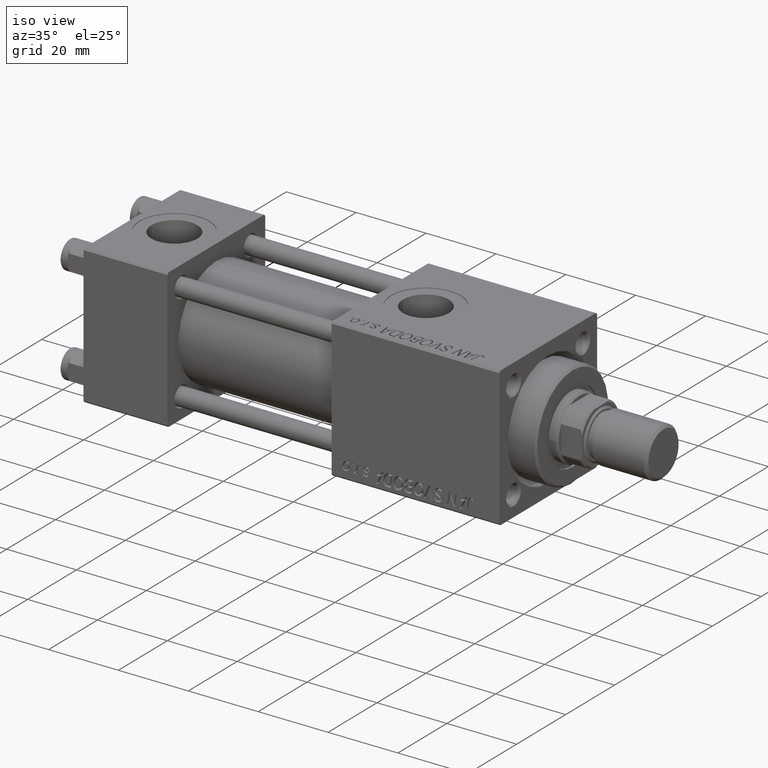
[diagram: clean part render]
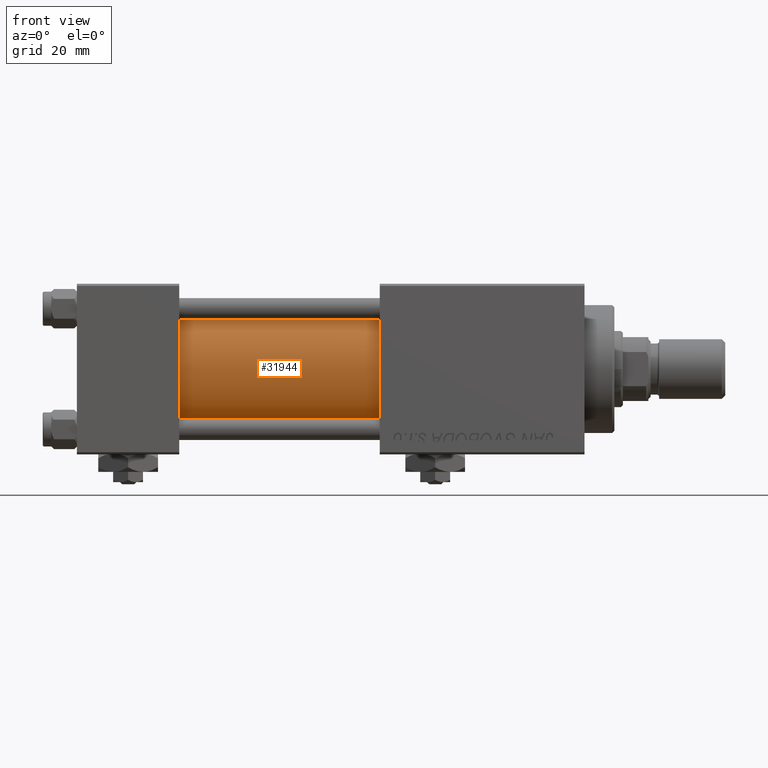
[diagram: tour spotlight — one face highlighted and labeled with its STEP entity id]
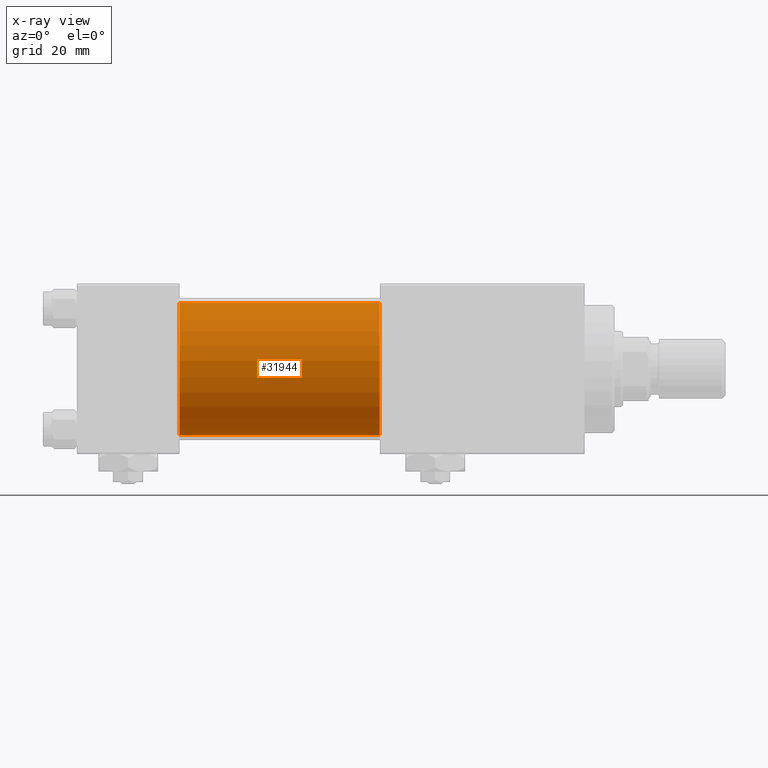
[diagram: x-ray of the same camera — body ghosted, this tour face saturated]
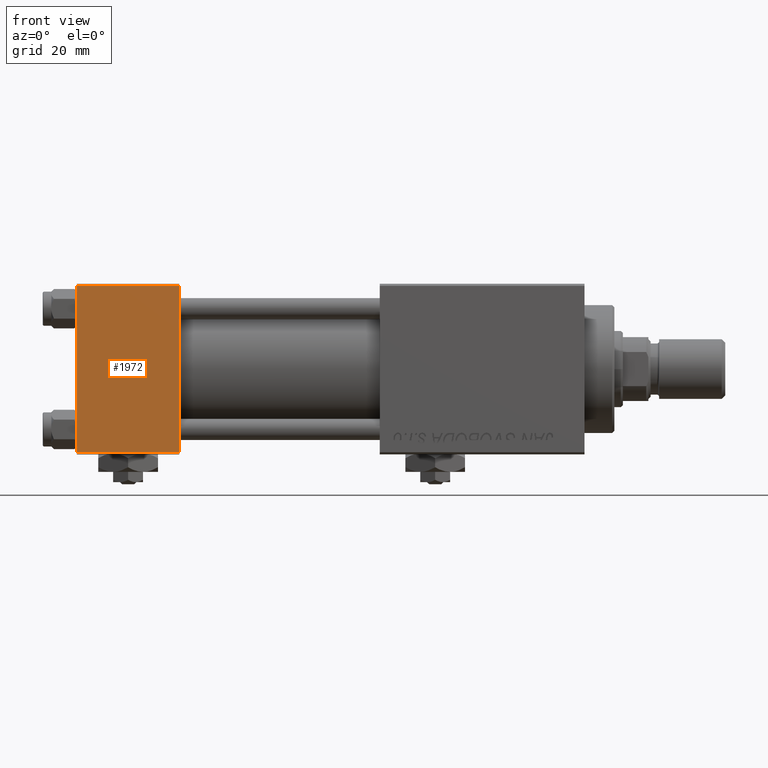
[diagram: tour spotlight — one face highlighted and labeled with its STEP entity id]
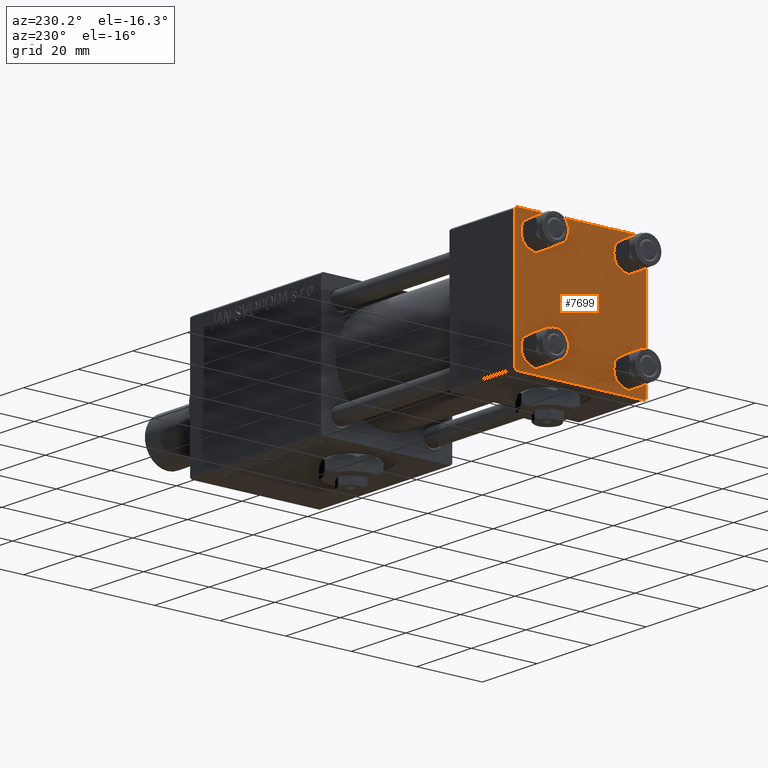
[diagram: tour spotlight — one face highlighted and labeled with its STEP entity id]
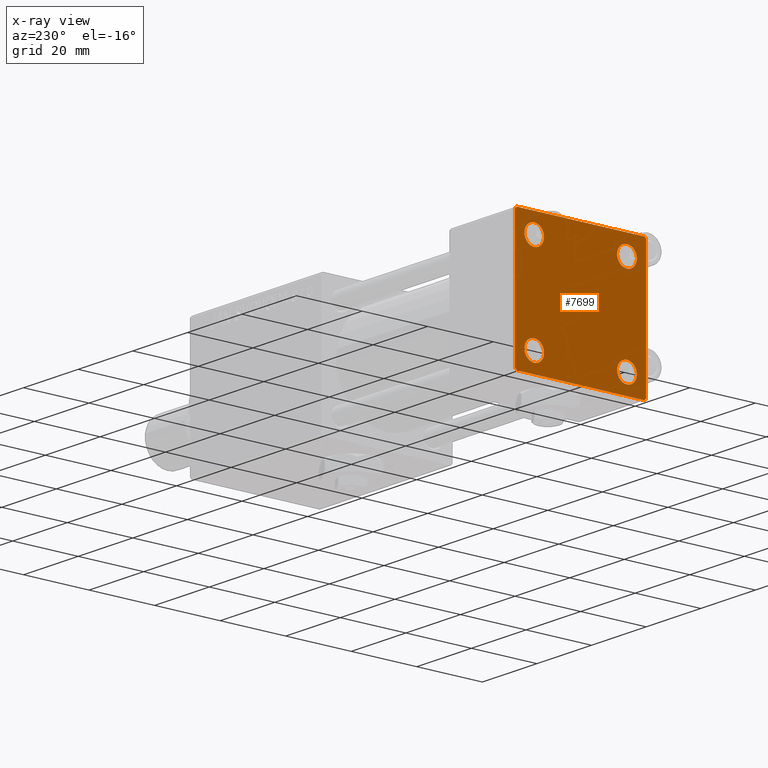
[diagram: x-ray of the same camera — body ghosted, this tour face saturated]
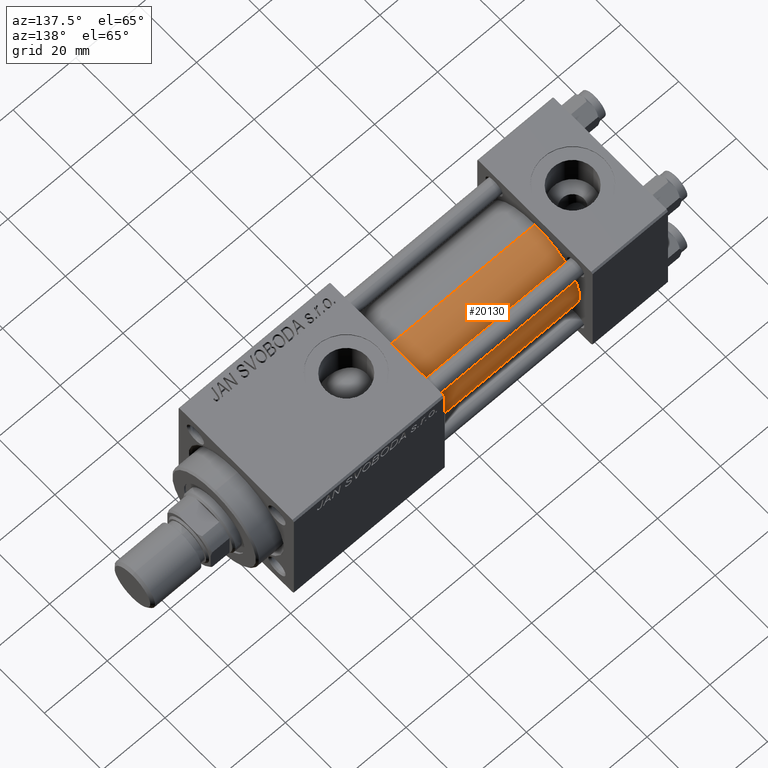
[diagram: tour spotlight — one face highlighted and labeled with its STEP entity id]
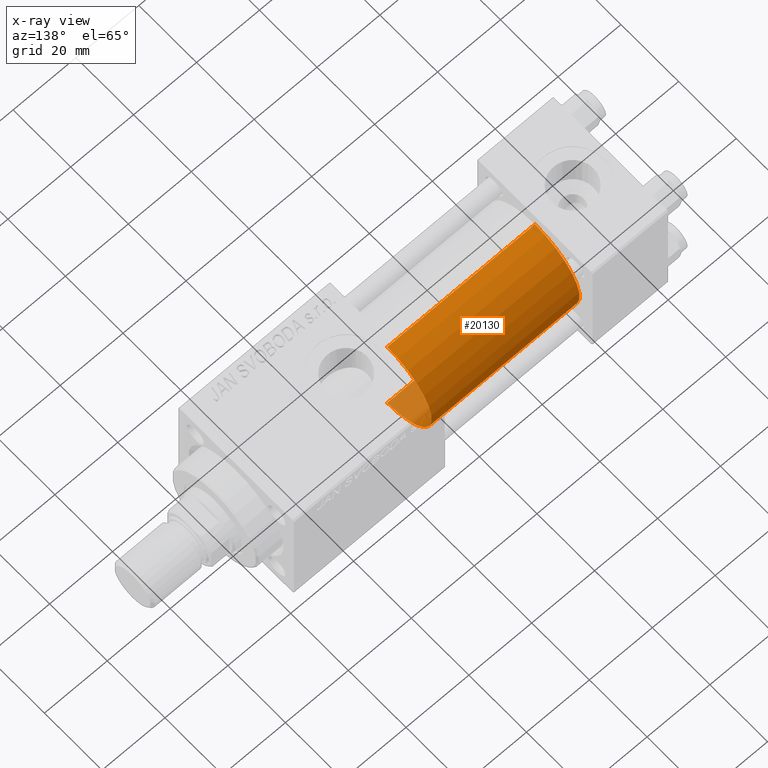
[diagram: x-ray of the same camera — body ghosted, this tour face saturated]
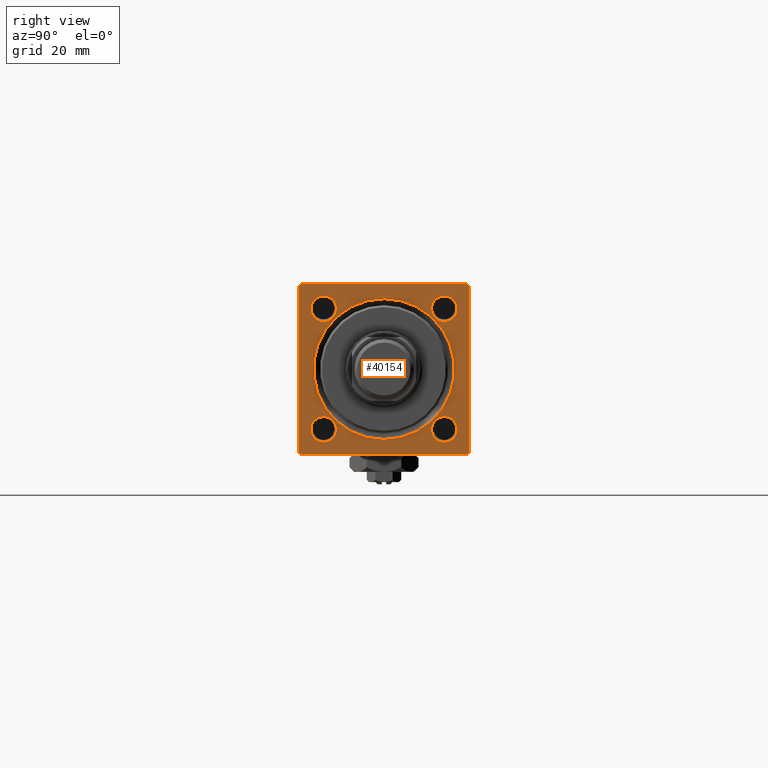
[diagram: tour spotlight — one face highlighted and labeled with its STEP entity id]
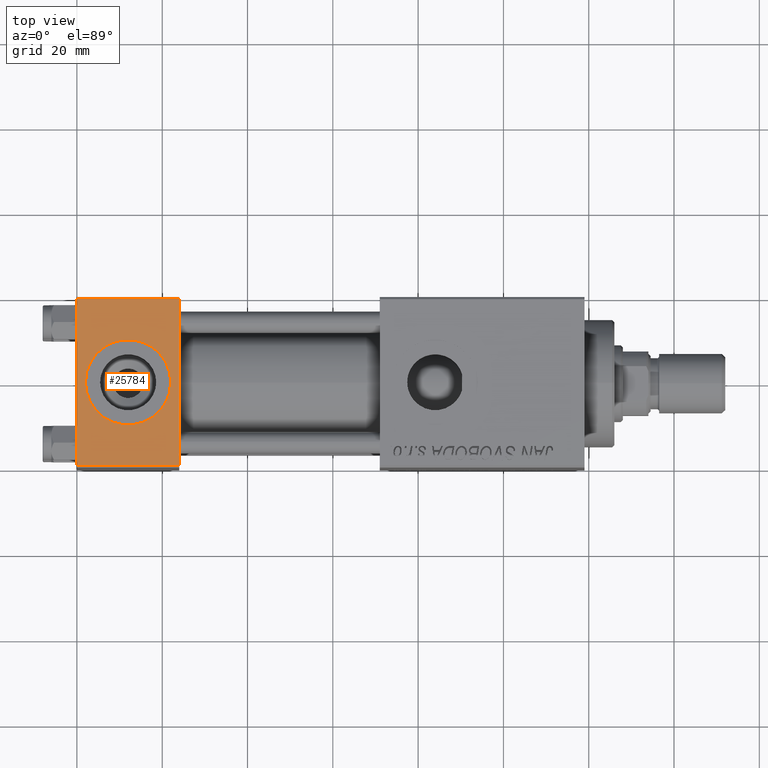
[diagram: tour spotlight — one face highlighted and labeled with its STEP entity id]
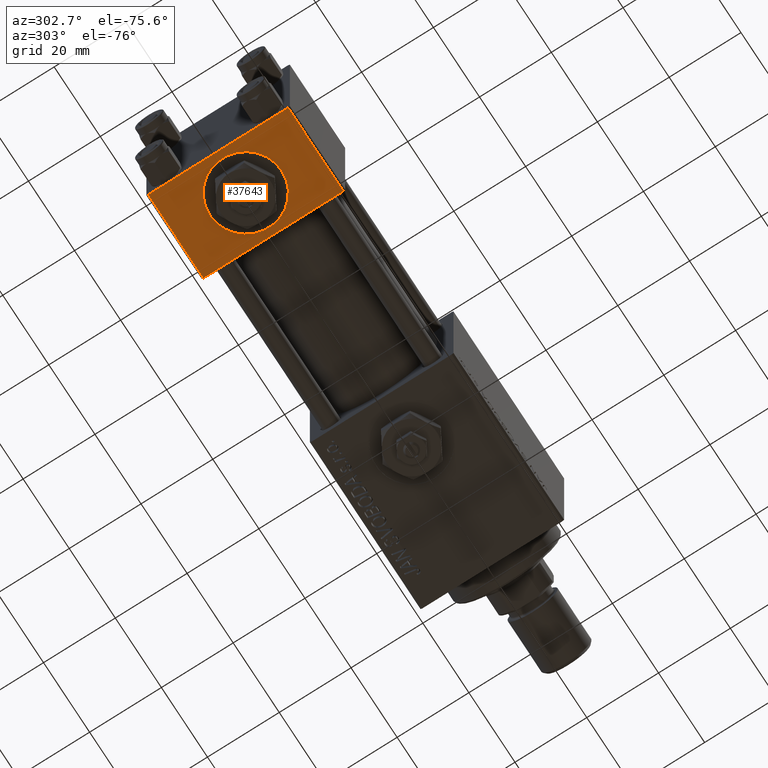
[diagram: tour spotlight — one face highlighted and labeled with its STEP entity id]
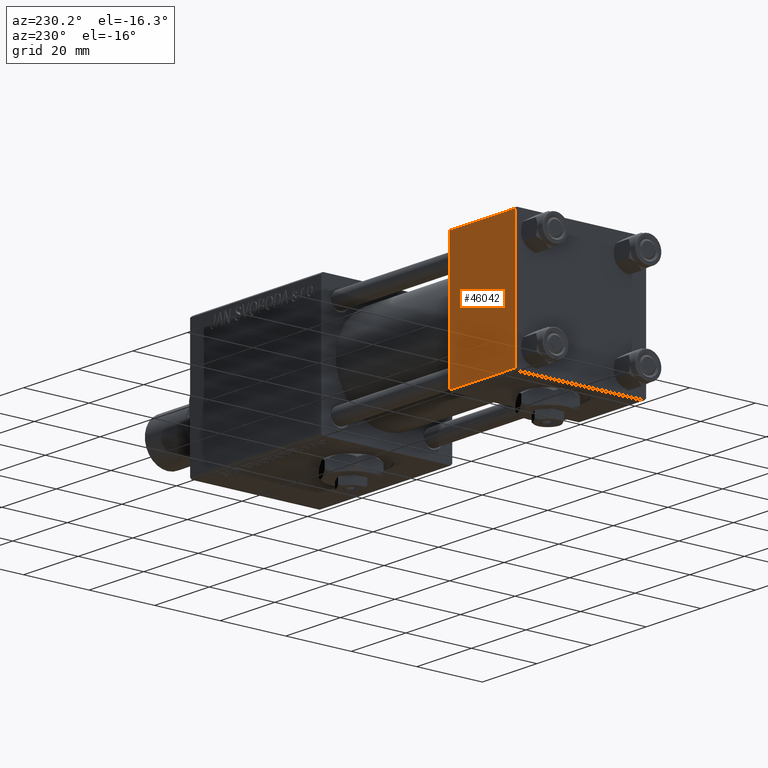
[diagram: tour spotlight — one face highlighted and labeled with its STEP entity id]
A machine part: a face-by-face anatomy tour. The part has 1259 B-rep faces; the first image is the clean iso view, then the 8 largest visible faces are spotlighted one at a time (largest first), each with its STEP entity span.

Face 1 — front view, entity #31944. An x-ray twin of the same camera follows (body ghosted, this face saturated) — the face is partly hidden behind the body. In plain terms, the highlighted cylindrical surface (partial cylindrical patch) has radius 15.5 mm, axis along (-1, -0, -0).
Definition (entity closure, byte-faithful):
#772 = DIRECTION ( 'NONE',  ( 1.000000000000000000, 0.000000000000000000, 0.000000000000000000 ) ) ;
#1445 = CIRCLE ( 'NONE', #26029, 15.50000000000000000 ) ;
#3919 = VERTEX_POINT ( 'NONE', #25788 ) ;
#4306 = AXIS2_PLACEMENT_3D ( 'NONE', #6470, #26680, #22682 ) ;
#4509 = VERTEX_POINT ( 'NONE', #25077 ) ;
#5015 = CARTESIAN_POINT ( 'NONE',  ( 24.00000000000000000, -2.602085213965210642E-15, 0.000000000000000000 ) ) ;
#6470 = CARTESIAN_POINT ( 'NONE',  ( 71.00000000000001421, -2.602085213965210642E-15, 0.000000000000000000 ) ) ;
#6595 = EDGE_CURVE ( 'NONE', #4509, #49563, #1445, .T. ) ;
#8224 = DIRECTION ( 'NONE',  ( 0.000000000000000000, 0.000000000000000000, 1.000000000000000000 ) ) ;
#8422 = CARTESIAN_POINT ( 'NONE',  ( 71.00000000000001421, -2.602085213965210642E-15, 15.50000000000000000 ) ) ;
#9399 = ORIENTED_EDGE ( 'NONE', *, *, #6595, .T. ) ;
#10640 = ORIENTED_EDGE ( 'NONE', *, *, #43083, .F. ) ;
#12834 = DIRECTION ( 'NONE',  ( -1.000000000000000000, -0.000000000000000000, -0.000000000000000000 ) ) ;
#12959 = EDGE_LOOP ( 'NONE', ( #39228, #10640, #49989, #9399 ) ) ;
#17626 = AXIS2_PLACEMENT_3D ( 'NONE', #49300, #21112, #41570 ) ;
#17658 = FACE_OUTER_BOUND ( 'NONE', #12959, .T. ) ;
#21112 = DIRECTION ( 'NONE',  ( -1.000000000000000000, -0.000000000000000000, -0.000000000000000000 ) ) ;
#22682 = DIRECTION ( 'NONE',  ( 0.000000000000000000, 0.000000000000000000, -1.000000000000000000 ) ) ;
#25077 = CARTESIAN_POINT ( 'NONE',  ( 24.00000000000000000, -2.602085213965210642E-15, 15.50000000000000000 ) ) ;
#25788 = CARTESIAN_POINT ( 'NONE',  ( 71.00000000000001421, -7.038826752868131828E-16, -15.50000000000000000 ) ) ;
#26029 = AXIS2_PLACEMENT_3D ( 'NONE', #5015, #772, #8224 ) ;
#26680 = DIRECTION ( 'NONE',  ( 1.000000000000000000, 0.000000000000000000, 0.000000000000000000 ) ) ;
#28715 = LINE ( 'NONE', #28982, #45893 ) ;
#28982 = CARTESIAN_POINT ( 'NONE',  ( 71.00000000000001421, -7.038826752868131828E-16, -15.50000000000000000 ) ) ;
#31944 = ADVANCED_FACE ( 'NONE', ( #17658 ), #33851, .T. ) ;
#32395 = EDGE_CURVE ( 'NONE', #35226, #4509, #33013, .T. ) ;
#33013 = LINE ( 'NONE', #49236, #43090 ) ;
#33749 = DIRECTION ( 'NONE',  ( -1.000000000000000000, -0.000000000000000000, -0.000000000000000000 ) ) ;
#33851 = CYLINDRICAL_SURFACE ( 'NONE', #17626, 15.50000000000000000 ) ;
#35226 = VERTEX_POINT ( 'NONE', #8422 ) ;
#39228 = ORIENTED_EDGE ( 'NONE', *, *, #39497, .F. ) ;
#39497 = EDGE_CURVE ( 'NONE', #3919, #49563, #28715, .T. ) ;
#41570 = DIRECTION ( 'NONE',  ( 0.000000000000000000, 0.000000000000000000, 1.000000000000000000 ) ) ;
#41631 = CIRCLE ( 'NONE', #4306, 15.50000000000000000 ) ;
#43083 = EDGE_CURVE ( 'NONE', #35226, #3919, #41631, .T. ) ;
#43090 = VECTOR ( 'NONE', #12834, 1000.000000000000000 ) ;
#45583 = CARTESIAN_POINT ( 'NONE',  ( 24.00000000000000000, -7.038826752868131828E-16, -15.50000000000000000 ) ) ;
#45893 = VECTOR ( 'NONE', #33749, 1000.000000000000000 ) ;
#49236 = CARTESIAN_POINT ( 'NONE',  ( 71.00000000000001421, -2.602085213965210642E-15, 15.50000000000000000 ) ) ;
#49300 = CARTESIAN_POINT ( 'NONE',  ( 71.00000000000001421, -2.602085213965210642E-15, 0.000000000000000000 ) ) ;
#49563 = VERTEX_POINT ( 'NONE', #45583 ) ;
#49989 = ORIENTED_EDGE ( 'NONE', *, *, #32395, .T. ) ;

Face 2 — front view, entity #1972. In plain terms, the highlighted planar face has unit normal (0, 1, 0).
Definition (entity closure, byte-faithful):
#1972 = ADVANCED_FACE ( 'NONE', ( #14635 ), #23384, .F. ) ;
#2105 = DIRECTION ( 'NONE',  ( 1.000000000000000000, 0.000000000000000000, 0.000000000000000000 ) ) ;
#3200 = DIRECTION ( 'NONE',  ( -0.000000000000000000, 1.000000000000000000, 8.673617379884036705E-17 ) ) ;
#3279 = CARTESIAN_POINT ( 'NONE',  ( 24.00000000000000000, -20.00000000000000355, 19.49999999999998224 ) ) ;
#3604 = VECTOR ( 'NONE', #2105, 1000.000000000000000 ) ;
#5746 = VERTEX_POINT ( 'NONE', #7902 ) ;
#7902 = CARTESIAN_POINT ( 'NONE',  ( 24.00000000000000000, -20.00000000000000000, -19.49999999999999645 ) ) ;
#10791 = CARTESIAN_POINT ( 'NONE',  ( 0.000000000000000000, -20.00000000000000355, 19.49999999999998224 ) ) ;
#12721 = VERTEX_POINT ( 'NONE', #30601 ) ;
#14556 = VECTOR ( 'NONE', #25156, 1000.000000000000000 ) ;
#14635 = FACE_OUTER_BOUND ( 'NONE', #47112, .T. ) ;
#14720 = ORIENTED_EDGE ( 'NONE', *, *, #48013, .T. ) ;
#18190 = EDGE_CURVE ( 'NONE', #41983, #43911, #24218, .T. ) ;
#18439 = VECTOR ( 'NONE', #35711, 1000.000000000000000 ) ;
#19420 = DIRECTION ( 'NONE',  ( 0.000000000000000000, -8.673617379884036705E-17, 1.000000000000000000 ) ) ;
#19646 = CARTESIAN_POINT ( 'NONE',  ( 0.000000000000000000, -20.00000000000000000, -19.49999999999999645 ) ) ;
#22216 = CARTESIAN_POINT ( 'NONE',  ( 24.00000000000000000, -20.00000000000000355, 19.99999999999998934 ) ) ;
#22298 = CARTESIAN_POINT ( 'NONE',  ( 24.00000000000000000, -20.00000000000000000, -19.49999999999999645 ) ) ;
#23216 = ORIENTED_EDGE ( 'NONE', *, *, #41785, .F. ) ;
#23384 = PLANE ( 'NONE',  #41286 ) ;
#23650 = CARTESIAN_POINT ( 'NONE',  ( 24.00000000000000000, -20.00000000000000355, 19.99999999999998934 ) ) ;
#24218 = LINE ( 'NONE', #49198, #30578 ) ;
#25156 = DIRECTION ( 'NONE',  ( 0.000000000000000000, 8.673617379884036705E-17, -1.000000000000000000 ) ) ;
#27462 = ORIENTED_EDGE ( 'NONE', *, *, #18190, .T. ) ;
#27977 = EDGE_CURVE ( 'NONE', #12721, #41983, #31712, .T. ) ;
#30578 = VECTOR ( 'NONE', #40430, 1000.000000000000000 ) ;
#30601 = CARTESIAN_POINT ( 'NONE',  ( 24.00000000000000000, -20.00000000000000355, 19.49999999999998224 ) ) ;
#30998 = ORIENTED_EDGE ( 'NONE', *, *, #27977, .T. ) ;
#31712 = LINE ( 'NONE', #3279, #18439 ) ;
#34255 = LINE ( 'NONE', #22298, #3604 ) ;
#35711 = DIRECTION ( 'NONE',  ( -1.000000000000000000, 0.000000000000000000, 0.000000000000000000 ) ) ;
#40430 = DIRECTION ( 'NONE',  ( 0.000000000000000000, 8.673617379884036705E-17, -1.000000000000000000 ) ) ;
#41286 = AXIS2_PLACEMENT_3D ( 'NONE', #23650, #3200, #19420 ) ;
#41785 = EDGE_CURVE ( 'NONE', #12721, #5746, #46410, .T. ) ;
#41983 = VERTEX_POINT ( 'NONE', #10791 ) ;
#43911 = VERTEX_POINT ( 'NONE', #19646 ) ;
#46410 = LINE ( 'NONE', #22216, #14556 ) ;
#47112 = EDGE_LOOP ( 'NONE', ( #27462, #14720, #23216, #30998 ) ) ;
#48013 = EDGE_CURVE ( 'NONE', #43911, #5746, #34255, .T. ) ;
#49198 = CARTESIAN_POINT ( 'NONE',  ( 0.000000000000000000, -20.00000000000000355, 19.99999999999998934 ) ) ;

Face 3 — auxiliary view, entity #7699. An x-ray twin of the same camera follows (body ghosted, this face saturated) — the face is partly hidden behind the body. In plain terms, the highlighted planar face has unit normal (-1, 0, 0).
Definition (entity closure, byte-faithful):
#1100 = EDGE_CURVE ( 'NONE', #22124, #18497, #41246, .T. ) ;
#1232 = VERTEX_POINT ( 'NONE', #15407 ) ;
#1260 = DIRECTION ( 'NONE',  ( 1.000000000000000000, 0.000000000000000000, 0.000000000000000000 ) ) ;
#1580 = VECTOR ( 'NONE', #7051, 1000.000000000000000 ) ;
#3014 = ORIENTED_EDGE ( 'NONE', *, *, #45493, .T. ) ;
#3990 = VECTOR ( 'NONE', #13583, 1000.000000000000000 ) ;
#4117 = VERTEX_POINT ( 'NONE', #50641 ) ;
#5299 = VECTOR ( 'NONE', #29547, 1000.000000000000000 ) ;
#5502 = DIRECTION ( 'NONE',  ( 0.000000000000000000, 0.000000000000000000, 1.000000000000000000 ) ) ;
#6158 = LINE ( 'NONE', #10149, #5299 ) ;
#6210 = CARTESIAN_POINT ( 'NONE',  ( 0.000000000000000000, -19.49999999999999289, 19.99999999999998934 ) ) ;
#6273 = FACE_OUTER_BOUND ( 'NONE', #8627, .T. ) ;
#6357 = EDGE_CURVE ( 'NONE', #33269, #4117, #41752, .T. ) ;
#6745 = CIRCLE ( 'NONE', #30464, 2.999999999999983569 ) ;
#6774 = CARTESIAN_POINT ( 'NONE',  ( 0.000000000000000000, -19.75000000000020961, -19.74999999999979394 ) ) ;
#7051 = DIRECTION ( 'NONE',  ( 0.000000000000000000, -0.7071067811865401342, 0.7071067811865549002 ) ) ;
#7329 = DIRECTION ( 'NONE',  ( 1.000000000000000000, 0.000000000000000000, 0.000000000000000000 ) ) ;
#7518 = LINE ( 'NONE', #31958, #15452 ) ;
#7699 = ADVANCED_FACE ( 'NONE', ( #33650, #10271, #29928, #46154, #6273 ), #21686, .T. ) ;
#8082 = CARTESIAN_POINT ( 'NONE',  ( 0.000000000000000000, -14.14999999999999503, 14.15000000000000391 ) ) ;
#8627 = EDGE_LOOP ( 'NONE', ( #41526, #45180, #49940, #15626, #50252, #29240, #10117, #9997 ) ) ;
#9122 = DIRECTION ( 'NONE',  ( 0.000000000000000000, 0.000000000000000000, 1.000000000000000000 ) ) ;
#9404 = ORIENTED_EDGE ( 'NONE', *, *, #36912, .T. ) ;
#9427 = CARTESIAN_POINT ( 'NONE',  ( 0.000000000000000000, -14.14999999999999503, -11.15000000000000036 ) ) ;
#9471 = AXIS2_PLACEMENT_3D ( 'NONE', #39488, #46678, #38959 ) ;
#9740 = CARTESIAN_POINT ( 'NONE',  ( 0.000000000000000000, 0.000000000000000000, 0.000000000000000000 ) ) ;
#9997 = ORIENTED_EDGE ( 'NONE', *, *, #16512, .T. ) ;
#10099 = DIRECTION ( 'NONE',  ( 1.000000000000000000, 0.000000000000000000, 0.000000000000000000 ) ) ;
#10117 = ORIENTED_EDGE ( 'NONE', *, *, #21887, .F. ) ;
#10149 = CARTESIAN_POINT ( 'NONE',  ( 0.000000000000000000, 20.00000000000000000, -20.00000000000000711 ) ) ;
#10271 = FACE_BOUND ( 'NONE', #22908, .T. ) ;
#10791 = CARTESIAN_POINT ( 'NONE',  ( 0.000000000000000000, -20.00000000000000355, 19.49999999999998224 ) ) ;
#11555 = DIRECTION ( 'NONE',  ( 0.000000000000000000, 0.000000000000000000, 1.000000000000000000 ) ) ;
#12022 = VECTOR ( 'NONE', #36033, 1000.000000000000114 ) ;
#12197 = AXIS2_PLACEMENT_3D ( 'NONE', #28774, #47962, #11555 ) ;
#12774 = EDGE_LOOP ( 'NONE', ( #28235, #36507 ) ) ;
#12778 = CARTESIAN_POINT ( 'NONE',  ( 0.000000000000000000, 14.14999999999999858, 14.15000000000000036 ) ) ;
#13583 = DIRECTION ( 'NONE',  ( 0.000000000000000000, 0.000000000000000000, -1.000000000000000000 ) ) ;
#13928 = AXIS2_PLACEMENT_3D ( 'NONE', #34203, #1260, #5502 ) ;
#14205 = CARTESIAN_POINT ( 'NONE',  ( 0.000000000000000000, 19.50000000000000000, 20.00000000000000000 ) ) ;
#15062 = EDGE_CURVE ( 'NONE', #4117, #26042, #52029, .T. ) ;
#15407 = CARTESIAN_POINT ( 'NONE',  ( 0.000000000000000000, -14.14999999999999503, 11.15000000000002345 ) ) ;
#15452 = VECTOR ( 'NONE', #23727, 1000.000000000000000 ) ;
#15626 = ORIENTED_EDGE ( 'NONE', *, *, #34580, .T. ) ;
#16266 = AXIS2_PLACEMENT_3D ( 'NONE', #47743, #7329, #42940 ) ;
#16498 = DIRECTION ( 'NONE',  ( 1.000000000000000000, 0.000000000000000000, 0.000000000000000000 ) ) ;
#16512 = EDGE_CURVE ( 'NONE', #51121, #33269, #17910, .T. ) ;
#17322 = CIRCLE ( 'NONE', #13928, 3.000000000000004441 ) ;
#17570 = CARTESIAN_POINT ( 'NONE',  ( 0.000000000000000000, 20.00000000000000000, 20.00000000000000000 ) ) ;
#17720 = DIRECTION ( 'NONE',  ( -1.000000000000000000, 0.000000000000000000, -0.000000000000000000 ) ) ;
#17724 = CARTESIAN_POINT ( 'NONE',  ( 0.000000000000000000, -14.14999999999999503, 17.14999999999998792 ) ) ;
#17884 = VERTEX_POINT ( 'NONE', #40765 ) ;
#17910 = LINE ( 'NONE', #29587, #18767 ) ;
#18190 = EDGE_CURVE ( 'NONE', #41983, #43911, #24218, .T. ) ;
#18285 = ORIENTED_EDGE ( 'NONE', *, *, #49993, .T. ) ;
#18497 = VERTEX_POINT ( 'NONE', #19562 ) ;
#18541 = CARTESIAN_POINT ( 'NONE',  ( -0.000000000000000000, 19.74999999999986855, -19.75000000000014211 ) ) ;
#18747 = LINE ( 'NONE', #6774, #1580 ) ;
#18758 = EDGE_LOOP ( 'NONE', ( #9404, #3014 ) ) ;
#18767 = VECTOR ( 'NONE', #26138, 999.9999999999998863 ) ;
#19322 = DIRECTION ( 'NONE',  ( 0.000000000000000000, 0.000000000000000000, 1.000000000000000000 ) ) ;
#19356 = CIRCLE ( 'NONE', #23586, 2.999999999999983569 ) ;
#19562 = CARTESIAN_POINT ( 'NONE',  ( 0.000000000000000000, 14.14999999999999858, 17.14999999999998437 ) ) ;
#19646 = CARTESIAN_POINT ( 'NONE',  ( 0.000000000000000000, -20.00000000000000000, -19.49999999999999645 ) ) ;
#20094 = CARTESIAN_POINT ( 'NONE',  ( 0.000000000000000000, -14.14999999999999503, 14.15000000000000391 ) ) ;
#21279 = ORIENTED_EDGE ( 'NONE', *, *, #41883, .T. ) ;
#21349 = ORIENTED_EDGE ( 'NONE', *, *, #51519, .T. ) ;
#21686 = PLANE ( 'NONE',  #25236 ) ;
#21887 = EDGE_CURVE ( 'NONE', #51121, #24240, #7518, .T. ) ;
#22124 = VERTEX_POINT ( 'NONE', #51432 ) ;
#22908 = EDGE_LOOP ( 'NONE', ( #18285, #21349 ) ) ;
#23586 = AXIS2_PLACEMENT_3D ( 'NONE', #12778, #16498, #44668 ) ;
#23727 = DIRECTION ( 'NONE',  ( 0.000000000000000000, -1.000000000000000000, -2.602085213965210149E-16 ) ) ;
#24218 = LINE ( 'NONE', #49198, #30578 ) ;
#24240 = VERTEX_POINT ( 'NONE', #6210 ) ;
#24756 = CIRCLE ( 'NONE', #9471, 2.999999999999983569 ) ;
#24836 = CARTESIAN_POINT ( 'NONE',  ( -0.000000000000000000, -19.74999999999992539, 19.75000000000006395 ) ) ;
#25062 = EDGE_CURVE ( 'NONE', #26042, #17884, #6158, .T. ) ;
#25236 = AXIS2_PLACEMENT_3D ( 'NONE', #9740, #17720, #29662 ) ;
#26042 = VERTEX_POINT ( 'NONE', #31918 ) ;
#26138 = DIRECTION ( 'NONE',  ( 0.000000000000000000, 0.7071067811865425767, -0.7071067811865525687 ) ) ;
#26660 = VERTEX_POINT ( 'NONE', #32068 ) ;
#28235 = ORIENTED_EDGE ( 'NONE', *, *, #33658, .T. ) ;
#28319 = CARTESIAN_POINT ( 'NONE',  ( 0.000000000000000000, -14.14999999999999503, -17.15000000000000924 ) ) ;
#28774 = CARTESIAN_POINT ( 'NONE',  ( 0.000000000000000000, -14.14999999999999503, -14.15000000000000391 ) ) ;
#29240 = ORIENTED_EDGE ( 'NONE', *, *, #42103, .T. ) ;
#29547 = DIRECTION ( 'NONE',  ( 0.000000000000000000, -1.000000000000000000, 1.734723475976807094E-16 ) ) ;
#29587 = CARTESIAN_POINT ( 'NONE',  ( -0.000000000000000000, 19.75000000000013500, 19.74999999999986144 ) ) ;
#29662 = DIRECTION ( 'NONE',  ( -0.000000000000000000, 0.000000000000000000, 1.000000000000000000 ) ) ;
#29928 = FACE_BOUND ( 'NONE', #34532, .T. ) ;
#30006 = CIRCLE ( 'NONE', #12197, 3.000000000000004441 ) ;
#30464 = AXIS2_PLACEMENT_3D ( 'NONE', #8082, #32520, #9122 ) ;
#30578 = VECTOR ( 'NONE', #40430, 1000.000000000000000 ) ;
#30667 = CIRCLE ( 'NONE', #16266, 2.999999999999983569 ) ;
#31012 = DIRECTION ( 'NONE',  ( -0.000000000000000000, -0.7071067811865524577, -0.7071067811865426878 ) ) ;
#31547 = CARTESIAN_POINT ( 'NONE',  ( 0.000000000000000000, 20.00000000000000000, 19.49999999999999289 ) ) ;
#31554 = CIRCLE ( 'NONE', #49342, 2.999999999999983569 ) ;
#31918 = CARTESIAN_POINT ( 'NONE',  ( 0.000000000000000000, 19.50000000000000711, -20.00000000000000711 ) ) ;
#31958 = CARTESIAN_POINT ( 'NONE',  ( 0.000000000000000000, 20.00000000000000000, 20.00000000000000000 ) ) ;
#32068 = CARTESIAN_POINT ( 'NONE',  ( 0.000000000000000000, 14.14999999999999858, -17.14999999999998437 ) ) ;
#32520 = DIRECTION ( 'NONE',  ( 1.000000000000000000, 0.000000000000000000, 0.000000000000000000 ) ) ;
#33213 = VERTEX_POINT ( 'NONE', #46706 ) ;
#33269 = VERTEX_POINT ( 'NONE', #31547 ) ;
#33650 = FACE_BOUND ( 'NONE', #18758, .T. ) ;
#33658 = EDGE_CURVE ( 'NONE', #18497, #22124, #19356, .T. ) ;
#34015 = DIRECTION ( 'NONE',  ( 0.000000000000000000, 0.000000000000000000, 1.000000000000000000 ) ) ;
#34203 = CARTESIAN_POINT ( 'NONE',  ( 0.000000000000000000, -14.14999999999999503, -14.15000000000000391 ) ) ;
#34532 = EDGE_LOOP ( 'NONE', ( #21279, #40429 ) ) ;
#34580 = EDGE_CURVE ( 'NONE', #17884, #43911, #18747, .T. ) ;
#36033 = DIRECTION ( 'NONE',  ( -0.000000000000000000, 0.7071067811865500152, 0.7071067811865451302 ) ) ;
#36507 = ORIENTED_EDGE ( 'NONE', *, *, #1100, .T. ) ;
#36804 = LINE ( 'NONE', #24836, #12022 ) ;
#36912 = EDGE_CURVE ( 'NONE', #47360, #1232, #6745, .T. ) ;
#38959 = DIRECTION ( 'NONE',  ( 0.000000000000000000, 0.000000000000000000, 1.000000000000000000 ) ) ;
#39488 = CARTESIAN_POINT ( 'NONE',  ( 0.000000000000000000, 14.14999999999999858, -14.15000000000000036 ) ) ;
#40429 = ORIENTED_EDGE ( 'NONE', *, *, #41954, .T. ) ;
#40430 = DIRECTION ( 'NONE',  ( 0.000000000000000000, 8.673617379884036705E-17, -1.000000000000000000 ) ) ;
#40765 = CARTESIAN_POINT ( 'NONE',  ( 0.000000000000000000, -19.50000000000000711, -20.00000000000000000 ) ) ;
#41246 = CIRCLE ( 'NONE', #44664, 2.999999999999983569 ) ;
#41526 = ORIENTED_EDGE ( 'NONE', *, *, #6357, .T. ) ;
#41752 = LINE ( 'NONE', #17570, #3990 ) ;
#41883 = EDGE_CURVE ( 'NONE', #33213, #26660, #30667, .T. ) ;
#41954 = EDGE_CURVE ( 'NONE', #26660, #33213, #24756, .T. ) ;
#41983 = VERTEX_POINT ( 'NONE', #10791 ) ;
#42103 = EDGE_CURVE ( 'NONE', #41983, #24240, #36804, .T. ) ;
#42940 = DIRECTION ( 'NONE',  ( 0.000000000000000000, 0.000000000000000000, 1.000000000000000000 ) ) ;
#43911 = VERTEX_POINT ( 'NONE', #19646 ) ;
#44370 = VERTEX_POINT ( 'NONE', #9427 ) ;
#44664 = AXIS2_PLACEMENT_3D ( 'NONE', #46787, #10099, #34015 ) ;
#44668 = DIRECTION ( 'NONE',  ( 0.000000000000000000, 0.000000000000000000, 1.000000000000000000 ) ) ;
#45180 = ORIENTED_EDGE ( 'NONE', *, *, #15062, .T. ) ;
#45493 = EDGE_CURVE ( 'NONE', #1232, #47360, #31554, .T. ) ;
#46154 = FACE_BOUND ( 'NONE', #12774, .T. ) ;
#46678 = DIRECTION ( 'NONE',  ( 1.000000000000000000, 0.000000000000000000, 0.000000000000000000 ) ) ;
#46706 = CARTESIAN_POINT ( 'NONE',  ( 0.000000000000000000, 14.14999999999999858, -11.15000000000001812 ) ) ;
#46787 = CARTESIAN_POINT ( 'NONE',  ( 0.000000000000000000, 14.14999999999999858, 14.15000000000000036 ) ) ;
#47360 = VERTEX_POINT ( 'NONE', #17724 ) ;
#47743 = CARTESIAN_POINT ( 'NONE',  ( 0.000000000000000000, 14.14999999999999858, -14.15000000000000036 ) ) ;
#47962 = DIRECTION ( 'NONE',  ( 1.000000000000000000, 0.000000000000000000, 0.000000000000000000 ) ) ;
#48425 = VECTOR ( 'NONE', #31012, 1000.000000000000000 ) ;
#49198 = CARTESIAN_POINT ( 'NONE',  ( 0.000000000000000000, -20.00000000000000355, 19.99999999999998934 ) ) ;
#49342 = AXIS2_PLACEMENT_3D ( 'NONE', #20094, #52257, #19322 ) ;
#49940 = ORIENTED_EDGE ( 'NONE', *, *, #25062, .T. ) ;
#49993 = EDGE_CURVE ( 'NONE', #44370, #50727, #30006, .T. ) ;
#50252 = ORIENTED_EDGE ( 'NONE', *, *, #18190, .F. ) ;
#50641 = CARTESIAN_POINT ( 'NONE',  ( 0.000000000000000000, 20.00000000000000000, -19.50000000000002132 ) ) ;
#50727 = VERTEX_POINT ( 'NONE', #28319 ) ;
#51121 = VERTEX_POINT ( 'NONE', #14205 ) ;
#51432 = CARTESIAN_POINT ( 'NONE',  ( 0.000000000000000000, 14.14999999999999858, 11.15000000000001990 ) ) ;
#51519 = EDGE_CURVE ( 'NONE', #50727, #44370, #17322, .T. ) ;
#52029 = LINE ( 'NONE', #18541, #48425 ) ;
#52257 = DIRECTION ( 'NONE',  ( 1.000000000000000000, 0.000000000000000000, 0.000000000000000000 ) ) ;

Face 4 — auxiliary view, entity #20130. An x-ray twin of the same camera follows (body ghosted, this face saturated) — the face is partly hidden behind the body. In plain terms, the highlighted cylindrical surface (partial cylindrical patch) has radius 15.5 mm, axis along (-1, -0, -0).
Definition (entity closure, byte-faithful):
#2498 = AXIS2_PLACEMENT_3D ( 'NONE', #28522, #44751, #4609 ) ;
#3919 = VERTEX_POINT ( 'NONE', #25788 ) ;
#4509 = VERTEX_POINT ( 'NONE', #25077 ) ;
#4609 = DIRECTION ( 'NONE',  ( 0.000000000000000000, 0.000000000000000000, -1.000000000000000000 ) ) ;
#6114 = ORIENTED_EDGE ( 'NONE', *, *, #36966, .F. ) ;
#8422 = CARTESIAN_POINT ( 'NONE',  ( 71.00000000000001421, -2.602085213965210642E-15, 15.50000000000000000 ) ) ;
#11620 = DIRECTION ( 'NONE',  ( 1.000000000000000000, 0.000000000000000000, 0.000000000000000000 ) ) ;
#11879 = CARTESIAN_POINT ( 'NONE',  ( 24.00000000000000000, -2.602085213965210642E-15, 0.000000000000000000 ) ) ;
#12834 = DIRECTION ( 'NONE',  ( -1.000000000000000000, -0.000000000000000000, -0.000000000000000000 ) ) ;
#16509 = CARTESIAN_POINT ( 'NONE',  ( 71.00000000000001421, -2.602085213965210642E-15, 0.000000000000000000 ) ) ;
#16769 = FACE_OUTER_BOUND ( 'NONE', #34836, .T. ) ;
#17497 = ORIENTED_EDGE ( 'NONE', *, *, #33369, .T. ) ;
#19854 = DIRECTION ( 'NONE',  ( 0.000000000000000000, 0.000000000000000000, 1.000000000000000000 ) ) ;
#20130 = ADVANCED_FACE ( 'NONE', ( #16769 ), #32963, .T. ) ;
#22743 = CIRCLE ( 'NONE', #33778, 15.50000000000000000 ) ;
#23029 = AXIS2_PLACEMENT_3D ( 'NONE', #16509, #41204, #29496 ) ;
#25077 = CARTESIAN_POINT ( 'NONE',  ( 24.00000000000000000, -2.602085213965210642E-15, 15.50000000000000000 ) ) ;
#25788 = CARTESIAN_POINT ( 'NONE',  ( 71.00000000000001421, -7.038826752868131828E-16, -15.50000000000000000 ) ) ;
#27111 = CIRCLE ( 'NONE', #2498, 15.50000000000000000 ) ;
#28522 = CARTESIAN_POINT ( 'NONE',  ( 71.00000000000001421, -2.602085213965210642E-15, 0.000000000000000000 ) ) ;
#28715 = LINE ( 'NONE', #28982, #45893 ) ;
#28982 = CARTESIAN_POINT ( 'NONE',  ( 71.00000000000001421, -7.038826752868131828E-16, -15.50000000000000000 ) ) ;
#29496 = DIRECTION ( 'NONE',  ( 0.000000000000000000, 0.000000000000000000, 1.000000000000000000 ) ) ;
#32395 = EDGE_CURVE ( 'NONE', #35226, #4509, #33013, .T. ) ;
#32963 = CYLINDRICAL_SURFACE ( 'NONE', #23029, 15.50000000000000000 ) ;
#33013 = LINE ( 'NONE', #49236, #43090 ) ;
#33369 = EDGE_CURVE ( 'NONE', #49563, #4509, #22743, .T. ) ;
#33749 = DIRECTION ( 'NONE',  ( -1.000000000000000000, -0.000000000000000000, -0.000000000000000000 ) ) ;
#33778 = AXIS2_PLACEMENT_3D ( 'NONE', #11879, #11620, #19854 ) ;
#34836 = EDGE_LOOP ( 'NONE', ( #6114, #44892, #17497, #49444 ) ) ;
#35226 = VERTEX_POINT ( 'NONE', #8422 ) ;
#36966 = EDGE_CURVE ( 'NONE', #3919, #35226, #27111, .T. ) ;
#39497 = EDGE_CURVE ( 'NONE', #3919, #49563, #28715, .T. ) ;
#41204 = DIRECTION ( 'NONE',  ( -1.000000000000000000, -0.000000000000000000, -0.000000000000000000 ) ) ;
#43090 = VECTOR ( 'NONE', #12834, 1000.000000000000000 ) ;
#44751 = DIRECTION ( 'NONE',  ( 1.000000000000000000, 0.000000000000000000, 0.000000000000000000 ) ) ;
#44892 = ORIENTED_EDGE ( 'NONE', *, *, #39497, .T. ) ;
#45583 = CARTESIAN_POINT ( 'NONE',  ( 24.00000000000000000, -7.038826752868131828E-16, -15.50000000000000000 ) ) ;
#45893 = VECTOR ( 'NONE', #33749, 1000.000000000000000 ) ;
#49236 = CARTESIAN_POINT ( 'NONE',  ( 71.00000000000001421, -2.602085213965210642E-15, 15.50000000000000000 ) ) ;
#49444 = ORIENTED_EDGE ( 'NONE', *, *, #32395, .F. ) ;
#49563 = VERTEX_POINT ( 'NONE', #45583 ) ;

Face 5 — right view, entity #40154. In plain terms, the highlighted planar face has unit normal (-1, 0, 0).
Definition (entity closure, byte-faithful):
#393 = EDGE_CURVE ( 'NONE', #6945, #16576, #31893, .T. ) ;
#1255 = VERTEX_POINT ( 'NONE', #15669 ) ;
#1287 = VERTEX_POINT ( 'NONE', #36126 ) ;
#1381 = CARTESIAN_POINT ( 'NONE',  ( 119.0000000000000142, 19.49999999999999645, -20.00000000000000000 ) ) ;
#1586 = CARTESIAN_POINT ( 'NONE',  ( 119.0000000000000142, 14.14999999999999858, -11.14999999999997016 ) ) ;
#2495 = DIRECTION ( 'NONE',  ( -1.000000000000000000, -0.000000000000000000, -0.000000000000000000 ) ) ;
#2570 = VECTOR ( 'NONE', #39987, 1000.000000000000000 ) ;
#3013 = DIRECTION ( 'NONE',  ( -0.000000000000000000, -0.7071067811865573427, -0.7071067811865376918 ) ) ;
#3097 = EDGE_CURVE ( 'NONE', #51893, #29783, #13334, .T. ) ;
#3487 = VECTOR ( 'NONE', #5857, 1000.000000000000114 ) ;
#3566 = ORIENTED_EDGE ( 'NONE', *, *, #47682, .T. ) ;
#3923 = ORIENTED_EDGE ( 'NONE', *, *, #46292, .T. ) ;
#3981 = LINE ( 'NONE', #26937, #13478 ) ;
#4608 = VERTEX_POINT ( 'NONE', #6992 ) ;
#4825 = LINE ( 'NONE', #41494, #11664 ) ;
#4900 = AXIS2_PLACEMENT_3D ( 'NONE', #11281, #2495, #18711 ) ;
#4982 = VECTOR ( 'NONE', #41073, 999.9999999999998863 ) ;
#5278 = VECTOR ( 'NONE', #46559, 999.9999999999998863 ) ;
#5303 = DIRECTION ( 'NONE',  ( -1.000000000000000000, -0.000000000000000000, -0.000000000000000000 ) ) ;
#5398 = EDGE_CURVE ( 'NONE', #50448, #9889, #47402, .T. ) ;
#5695 = EDGE_CURVE ( 'NONE', #25050, #1255, #43256, .T. ) ;
#5857 = DIRECTION ( 'NONE',  ( -0.000000000000000000, 0.7071067811865474617, 0.7071067811865474617 ) ) ;
#6187 = DIRECTION ( 'NONE',  ( -1.000000000000000000, 0.000000000000000000, -0.000000000000000000 ) ) ;
#6642 = EDGE_LOOP ( 'NONE', ( #42215, #21008 ) ) ;
#6929 = VERTEX_POINT ( 'NONE', #44331 ) ;
#6945 = VERTEX_POINT ( 'NONE', #24369 ) ;
#6992 = CARTESIAN_POINT ( 'NONE',  ( 119.0000000000000142, 0.000000000000000000, -16.50000000000001421 ) ) ;
#7654 = VERTEX_POINT ( 'NONE', #21438 ) ;
#7826 = LINE ( 'NONE', #52215, #2570 ) ;
#7866 = EDGE_CURVE ( 'NONE', #29783, #51893, #48990, .T. ) ;
#8040 = ORIENTED_EDGE ( 'NONE', *, *, #40573, .T. ) ;
#8116 = EDGE_CURVE ( 'NONE', #44940, #4608, #15114, .T. ) ;
#8979 = AXIS2_PLACEMENT_3D ( 'NONE', #44871, #15919, #32897 ) ;
#9360 = CARTESIAN_POINT ( 'NONE',  ( 119.0000000000000142, -19.50000000000002487, -20.00000000000000000 ) ) ;
#9441 = DIRECTION ( 'NONE',  ( 0.000000000000000000, 0.000000000000000000, 1.000000000000000000 ) ) ;
#9889 = VERTEX_POINT ( 'NONE', #19630 ) ;
#10152 = ORIENTED_EDGE ( 'NONE', *, *, #17533, .T. ) ;
#10461 = EDGE_CURVE ( 'NONE', #9889, #6929, #3981, .T. ) ;
#11281 = CARTESIAN_POINT ( 'NONE',  ( 119.0000000000000142, 0.000000000000000000, 0.000000000000000000 ) ) ;
#11417 = DIRECTION ( 'NONE',  ( 0.000000000000000000, 0.000000000000000000, 1.000000000000000000 ) ) ;
#11664 = VECTOR ( 'NONE', #13073, 1000.000000000000000 ) ;
#12149 = CARTESIAN_POINT ( 'NONE',  ( 119.0000000000000142, 19.49999999999996803, 20.00000000000000000 ) ) ;
#12724 = VERTEX_POINT ( 'NONE', #26626 ) ;
#13073 = DIRECTION ( 'NONE',  ( 0.000000000000000000, 0.000000000000000000, -1.000000000000000000 ) ) ;
#13122 = CARTESIAN_POINT ( 'NONE',  ( 119.0000000000000142, 14.14999999999999858, -17.15000000000003411 ) ) ;
#13334 = CIRCLE ( 'NONE', #49699, 3.000000000000031974 ) ;
#13478 = VECTOR ( 'NONE', #38898, 1000.000000000000000 ) ;
#13846 = LINE ( 'NONE', #18358, #3487 ) ;
#13865 = AXIS2_PLACEMENT_3D ( 'NONE', #42377, #37860, #9441 ) ;
#14562 = CARTESIAN_POINT ( 'NONE',  ( 119.0000000000000142, 19.99999999999999645, -20.00000000000000000 ) ) ;
#15073 = DIRECTION ( 'NONE',  ( 0.000000000000000000, 0.000000000000000000, 1.000000000000000000 ) ) ;
#15114 = CIRCLE ( 'NONE', #4900, 16.50000000000001421 ) ;
#15120 = AXIS2_PLACEMENT_3D ( 'NONE', #35944, #44687, #24216 ) ;
#15579 = VERTEX_POINT ( 'NONE', #13122 ) ;
#15669 = CARTESIAN_POINT ( 'NONE',  ( 119.0000000000000142, -19.50000000000002487, -20.00000000000000000 ) ) ;
#15919 = DIRECTION ( 'NONE',  ( -1.000000000000000000, -0.000000000000000000, -0.000000000000000000 ) ) ;
#16576 = VERTEX_POINT ( 'NONE', #25346 ) ;
#17533 = EDGE_CURVE ( 'NONE', #1287, #12724, #47555, .T. ) ;
#18142 = ORIENTED_EDGE ( 'NONE', *, *, #10461, .T. ) ;
#18358 = CARTESIAN_POINT ( 'NONE',  ( 119.0000000000000142, 19.99999999999999645, -19.50000000000000000 ) ) ;
#18711 = DIRECTION ( 'NONE',  ( 0.000000000000000000, 0.000000000000000000, 1.000000000000000000 ) ) ;
#19111 = EDGE_LOOP ( 'NONE', ( #25012, #30826 ) ) ;
#19630 = CARTESIAN_POINT ( 'NONE',  ( 119.0000000000000142, -20.00000000000000355, 19.50000000000002487 ) ) ;
#21008 = ORIENTED_EDGE ( 'NONE', *, *, #34994, .T. ) ;
#21078 = ORIENTED_EDGE ( 'NONE', *, *, #38962, .T. ) ;
#21438 = CARTESIAN_POINT ( 'NONE',  ( 119.0000000000000142, 19.99999999999999645, 19.49999999999998579 ) ) ;
#21608 = FACE_OUTER_BOUND ( 'NONE', #43900, .T. ) ;
#22094 = LINE ( 'NONE', #9360, #5278 ) ;
#22777 = CIRCLE ( 'NONE', #15120, 3.000000000000031974 ) ;
#23778 = CIRCLE ( 'NONE', #39060, 16.50000000000001421 ) ;
#24216 = DIRECTION ( 'NONE',  ( 0.000000000000000000, 0.000000000000000000, 1.000000000000000000 ) ) ;
#24276 = CARTESIAN_POINT ( 'NONE',  ( 119.0000000000000142, 14.14999999999999858, 11.14999999999996838 ) ) ;
#24369 = CARTESIAN_POINT ( 'NONE',  ( 119.0000000000000142, -14.14999999999999680, 17.15000000000003411 ) ) ;
#25012 = ORIENTED_EDGE ( 'NONE', *, *, #49558, .T. ) ;
#25050 = VERTEX_POINT ( 'NONE', #1381 ) ;
#25346 = CARTESIAN_POINT ( 'NONE',  ( 119.0000000000000142, -14.14999999999999680, 11.14999999999996838 ) ) ;
#25378 = LINE ( 'NONE', #33606, #4982 ) ;
#25399 = VERTEX_POINT ( 'NONE', #1586 ) ;
#26049 = VERTEX_POINT ( 'NONE', #48658 ) ;
#26083 = AXIS2_PLACEMENT_3D ( 'NONE', #51725, #42945, #27526 ) ;
#26626 = CARTESIAN_POINT ( 'NONE',  ( 119.0000000000000142, -14.14999999999999503, -17.15000000000003766 ) ) ;
#26876 = VECTOR ( 'NONE', #3013, 1000.000000000000114 ) ;
#26937 = CARTESIAN_POINT ( 'NONE',  ( 119.0000000000000142, -20.00000000000000355, 19.99999999999999645 ) ) ;
#27170 = AXIS2_PLACEMENT_3D ( 'NONE', #48555, #48034, #15073 ) ;
#27335 = AXIS2_PLACEMENT_3D ( 'NONE', #38258, #5303, #41976 ) ;
#27526 = DIRECTION ( 'NONE',  ( 0.000000000000000000, 0.000000000000000000, 1.000000000000000000 ) ) ;
#28013 = EDGE_CURVE ( 'NONE', #7654, #26049, #4825, .T. ) ;
#29368 = DIRECTION ( 'NONE',  ( 0.000000000000000000, 0.000000000000000000, 1.000000000000000000 ) ) ;
#29783 = VERTEX_POINT ( 'NONE', #47092 ) ;
#30101 = FACE_BOUND ( 'NONE', #35838, .T. ) ;
#30633 = FACE_BOUND ( 'NONE', #37952, .T. ) ;
#30760 = DIRECTION ( 'NONE',  ( 0.000000000000000000, -1.000000000000000000, 0.000000000000000000 ) ) ;
#30826 = ORIENTED_EDGE ( 'NONE', *, *, #393, .T. ) ;
#31333 = CARTESIAN_POINT ( 'NONE',  ( 119.0000000000000142, 14.14999999999999858, -14.15000000000000036 ) ) ;
#31713 = CARTESIAN_POINT ( 'NONE',  ( 119.0000000000000142, -20.00000000000000355, 19.50000000000002487 ) ) ;
#31893 = CIRCLE ( 'NONE', #8979, 3.000000000000031974 ) ;
#32897 = DIRECTION ( 'NONE',  ( 0.000000000000000000, 0.000000000000000000, 1.000000000000000000 ) ) ;
#33606 = CARTESIAN_POINT ( 'NONE',  ( 119.0000000000000142, 19.49999999999996803, 20.00000000000000000 ) ) ;
#34110 = CIRCLE ( 'NONE', #46841, 3.000000000000031974 ) ;
#34994 = EDGE_CURVE ( 'NONE', #25399, #15579, #22777, .T. ) ;
#35039 = ORIENTED_EDGE ( 'NONE', *, *, #28013, .F. ) ;
#35338 = VECTOR ( 'NONE', #30760, 1000.000000000000000 ) ;
#35838 = EDGE_LOOP ( 'NONE', ( #3923, #10152 ) ) ;
#35944 = CARTESIAN_POINT ( 'NONE',  ( 119.0000000000000142, 14.14999999999999858, -14.15000000000000036 ) ) ;
#35978 = EDGE_CURVE ( 'NONE', #7654, #39658, #25378, .T. ) ;
#36126 = CARTESIAN_POINT ( 'NONE',  ( 119.0000000000000142, -14.14999999999999503, -11.14999999999997371 ) ) ;
#36345 = ORIENTED_EDGE ( 'NONE', *, *, #5695, .F. ) ;
#36710 = ORIENTED_EDGE ( 'NONE', *, *, #7866, .T. ) ;
#36779 = CIRCLE ( 'NONE', #13865, 3.000000000000031974 ) ;
#37495 = CIRCLE ( 'NONE', #27335, 3.000000000000031974 ) ;
#37821 = FACE_BOUND ( 'NONE', #19111, .T. ) ;
#37860 = DIRECTION ( 'NONE',  ( -1.000000000000000000, -0.000000000000000000, -0.000000000000000000 ) ) ;
#37952 = EDGE_LOOP ( 'NONE', ( #39877, #36710 ) ) ;
#38258 = CARTESIAN_POINT ( 'NONE',  ( 119.0000000000000142, -14.14999999999999503, -14.15000000000000391 ) ) ;
#38349 = CARTESIAN_POINT ( 'NONE',  ( 119.0000000000000142, 0.000000000000000000, 0.000000000000000000 ) ) ;
#38898 = DIRECTION ( 'NONE',  ( 0.000000000000000000, 8.673617379884036705E-17, -1.000000000000000000 ) ) ;
#38962 = EDGE_CURVE ( 'NONE', #39658, #50448, #7826, .T. ) ;
#39060 = AXIS2_PLACEMENT_3D ( 'NONE', #46582, #49771, #46312 ) ;
#39096 = EDGE_CURVE ( 'NONE', #4608, #44940, #23778, .T. ) ;
#39406 = ORIENTED_EDGE ( 'NONE', *, *, #5398, .T. ) ;
#39658 = VERTEX_POINT ( 'NONE', #12149 ) ;
#39877 = ORIENTED_EDGE ( 'NONE', *, *, #3097, .T. ) ;
#39987 = DIRECTION ( 'NONE',  ( 0.000000000000000000, -1.000000000000000000, -8.673617379884035472E-17 ) ) ;
#40154 = ADVANCED_FACE ( 'NONE', ( #30633, #37821, #30101, #46325, #46867, #21608 ), #46596, .F. ) ;
#40573 = EDGE_CURVE ( 'NONE', #25050, #26049, #13846, .T. ) ;
#41073 = DIRECTION ( 'NONE',  ( 0.000000000000000000, -0.7071067811865574537, 0.7071067811865376918 ) ) ;
#41494 = CARTESIAN_POINT ( 'NONE',  ( 119.0000000000000142, 19.99999999999999645, 20.00000000000000000 ) ) ;
#41507 = CARTESIAN_POINT ( 'NONE',  ( 119.0000000000000142, 2.020667218593134678E-15, 16.50000000000001421 ) ) ;
#41976 = DIRECTION ( 'NONE',  ( 0.000000000000000000, 0.000000000000000000, 1.000000000000000000 ) ) ;
#42067 = DIRECTION ( 'NONE',  ( -0.000000000000000000, 0.000000000000000000, 1.000000000000000000 ) ) ;
#42215 = ORIENTED_EDGE ( 'NONE', *, *, #46337, .T. ) ;
#42377 = CARTESIAN_POINT ( 'NONE',  ( 119.0000000000000142, -14.14999999999999680, 14.15000000000000036 ) ) ;
#42788 = CARTESIAN_POINT ( 'NONE',  ( 119.0000000000000142, -19.50000000000001776, 19.99999999999999645 ) ) ;
#42945 = DIRECTION ( 'NONE',  ( -1.000000000000000000, -0.000000000000000000, -0.000000000000000000 ) ) ;
#43172 = ORIENTED_EDGE ( 'NONE', *, *, #39096, .T. ) ;
#43256 = LINE ( 'NONE', #14562, #35338 ) ;
#43900 = EDGE_LOOP ( 'NONE', ( #18142, #3566, #36345, #8040, #35039, #49605, #21078, #39406 ) ) ;
#44203 = AXIS2_PLACEMENT_3D ( 'NONE', #38349, #6187, #42067 ) ;
#44331 = CARTESIAN_POINT ( 'NONE',  ( 119.0000000000000142, -20.00000000000000000, -19.50000000000001066 ) ) ;
#44687 = DIRECTION ( 'NONE',  ( -1.000000000000000000, -0.000000000000000000, -0.000000000000000000 ) ) ;
#44871 = CARTESIAN_POINT ( 'NONE',  ( 119.0000000000000142, -14.14999999999999680, 14.15000000000000036 ) ) ;
#44940 = VERTEX_POINT ( 'NONE', #41507 ) ;
#45342 = CARTESIAN_POINT ( 'NONE',  ( 119.0000000000000142, 14.14999999999999858, 14.15000000000000036 ) ) ;
#46292 = EDGE_CURVE ( 'NONE', #12724, #1287, #37495, .T. ) ;
#46312 = DIRECTION ( 'NONE',  ( 0.000000000000000000, 0.000000000000000000, 1.000000000000000000 ) ) ;
#46325 = FACE_BOUND ( 'NONE', #6642, .T. ) ;
#46337 = EDGE_CURVE ( 'NONE', #15579, #25399, #34110, .T. ) ;
#46559 = DIRECTION ( 'NONE',  ( 0.000000000000000000, 0.7071067811865376918, -0.7071067811865574537 ) ) ;
#46582 = CARTESIAN_POINT ( 'NONE',  ( 119.0000000000000142, 0.000000000000000000, 0.000000000000000000 ) ) ;
#46596 = PLANE ( 'NONE',  #44203 ) ;
#46755 = ORIENTED_EDGE ( 'NONE', *, *, #8116, .T. ) ;
#46841 = AXIS2_PLACEMENT_3D ( 'NONE', #31333, #47823, #11417 ) ;
#46867 = FACE_BOUND ( 'NONE', #50772, .T. ) ;
#47092 = CARTESIAN_POINT ( 'NONE',  ( 119.0000000000000142, 14.14999999999999858, 17.15000000000003411 ) ) ;
#47402 = LINE ( 'NONE', #31713, #26876 ) ;
#47555 = CIRCLE ( 'NONE', #27170, 3.000000000000031974 ) ;
#47682 = EDGE_CURVE ( 'NONE', #6929, #1255, #22094, .T. ) ;
#47823 = DIRECTION ( 'NONE',  ( -1.000000000000000000, -0.000000000000000000, -0.000000000000000000 ) ) ;
#48034 = DIRECTION ( 'NONE',  ( -1.000000000000000000, -0.000000000000000000, -0.000000000000000000 ) ) ;
#48553 = DIRECTION ( 'NONE',  ( -1.000000000000000000, -0.000000000000000000, -0.000000000000000000 ) ) ;
#48555 = CARTESIAN_POINT ( 'NONE',  ( 119.0000000000000142, -14.14999999999999503, -14.15000000000000391 ) ) ;
#48658 = CARTESIAN_POINT ( 'NONE',  ( 119.0000000000000142, 19.99999999999999645, -19.50000000000000000 ) ) ;
#48990 = CIRCLE ( 'NONE', #26083, 3.000000000000031974 ) ;
#49558 = EDGE_CURVE ( 'NONE', #16576, #6945, #36779, .T. ) ;
#49605 = ORIENTED_EDGE ( 'NONE', *, *, #35978, .T. ) ;
#49699 = AXIS2_PLACEMENT_3D ( 'NONE', #45342, #48553, #29368 ) ;
#49771 = DIRECTION ( 'NONE',  ( -1.000000000000000000, -0.000000000000000000, -0.000000000000000000 ) ) ;
#50448 = VERTEX_POINT ( 'NONE', #42788 ) ;
#50772 = EDGE_LOOP ( 'NONE', ( #43172, #46755 ) ) ;
#51725 = CARTESIAN_POINT ( 'NONE',  ( 119.0000000000000142, 14.14999999999999858, 14.15000000000000036 ) ) ;
#51893 = VERTEX_POINT ( 'NONE', #24276 ) ;
#52215 = CARTESIAN_POINT ( 'NONE',  ( 119.0000000000000142, 19.99999999999999645, 20.00000000000000000 ) ) ;

Face 6 — top view, entity #25784. In plain terms, the highlighted planar face has unit normal (0, 0, -1).
Definition (entity closure, byte-faithful):
#1364 = CARTESIAN_POINT ( 'NONE',  ( 24.00000000000000000, -19.49999999999999289, 19.99999999999998934 ) ) ;
#1845 = ORIENTED_EDGE ( 'NONE', *, *, #44886, .F. ) ;
#4338 = DIRECTION ( 'NONE',  ( 0.000000000000000000, 1.000000000000000000, 2.602085213965210149E-16 ) ) ;
#4612 = VERTEX_POINT ( 'NONE', #15492 ) ;
#5028 = VERTEX_POINT ( 'NONE', #37963 ) ;
#5157 = CIRCLE ( 'NONE', #13661, 9.999999999999998224 ) ;
#5180 = ORIENTED_EDGE ( 'NONE', *, *, #25330, .T. ) ;
#5543 = VERTEX_POINT ( 'NONE', #1364 ) ;
#6007 = VECTOR ( 'NONE', #39699, 1000.000000000000000 ) ;
#6210 = CARTESIAN_POINT ( 'NONE',  ( 0.000000000000000000, -19.49999999999999289, 19.99999999999998934 ) ) ;
#6747 = CARTESIAN_POINT ( 'NONE',  ( 24.00000000000000000, 20.00000000000000000, 20.00000000000000000 ) ) ;
#7518 = LINE ( 'NONE', #31958, #15452 ) ;
#9121 = ORIENTED_EDGE ( 'NONE', *, *, #21887, .T. ) ;
#12068 = FACE_OUTER_BOUND ( 'NONE', #21416, .T. ) ;
#13661 = AXIS2_PLACEMENT_3D ( 'NONE', #42051, #42317, #38601 ) ;
#14205 = CARTESIAN_POINT ( 'NONE',  ( 0.000000000000000000, 19.50000000000000000, 20.00000000000000000 ) ) ;
#14990 = CARTESIAN_POINT ( 'NONE',  ( 24.00000000000000000, 19.50000000000000000, 20.00000000000000000 ) ) ;
#15452 = VECTOR ( 'NONE', #23727, 1000.000000000000000 ) ;
#15459 = CIRCLE ( 'NONE', #46040, 9.999999999999998224 ) ;
#15492 = CARTESIAN_POINT ( 'NONE',  ( 22.00000000000000000, 1.540743955509788682E-30, 19.99999999999999645 ) ) ;
#16236 = LINE ( 'NONE', #43628, #49003 ) ;
#17321 = VECTOR ( 'NONE', #48395, 1000.000000000000000 ) ;
#18956 = ORIENTED_EDGE ( 'NONE', *, *, #32526, .T. ) ;
#19956 = EDGE_CURVE ( 'NONE', #4612, #5028, #5157, .T. ) ;
#21416 = EDGE_LOOP ( 'NONE', ( #9121, #5180, #1845, #18956 ) ) ;
#21887 = EDGE_CURVE ( 'NONE', #51121, #24240, #7518, .T. ) ;
#23677 = DIRECTION ( 'NONE',  ( 0.000000000000000000, 0.000000000000000000, 1.000000000000000000 ) ) ;
#23727 = DIRECTION ( 'NONE',  ( 0.000000000000000000, -1.000000000000000000, -2.602085213965210149E-16 ) ) ;
#24240 = VERTEX_POINT ( 'NONE', #6210 ) ;
#24530 = PLANE ( 'NONE',  #42091 ) ;
#25282 = ORIENTED_EDGE ( 'NONE', *, *, #47752, .F. ) ;
#25330 = EDGE_CURVE ( 'NONE', #24240, #5543, #44409, .T. ) ;
#25641 = VERTEX_POINT ( 'NONE', #14990 ) ;
#25784 = ADVANCED_FACE ( 'NONE', ( #36505, #12068 ), #24530, .F. ) ;
#27652 = DIRECTION ( 'NONE',  ( 1.000000000000000000, 0.000000000000000000, 0.000000000000000000 ) ) ;
#29290 = CARTESIAN_POINT ( 'NONE',  ( 24.00000000000000000, 20.00000000000000000, 20.00000000000000000 ) ) ;
#31958 = CARTESIAN_POINT ( 'NONE',  ( 0.000000000000000000, 20.00000000000000000, 20.00000000000000000 ) ) ;
#32167 = CARTESIAN_POINT ( 'NONE',  ( 24.00000000000000000, -19.49999999999999289, 19.99999999999998934 ) ) ;
#32526 = EDGE_CURVE ( 'NONE', #25641, #51121, #16236, .T. ) ;
#33290 = DIRECTION ( 'NONE',  ( 0.000000000000000000, 2.602085213965210149E-16, -1.000000000000000000 ) ) ;
#33708 = ORIENTED_EDGE ( 'NONE', *, *, #19956, .F. ) ;
#36505 = FACE_BOUND ( 'NONE', #43598, .T. ) ;
#37963 = CARTESIAN_POINT ( 'NONE',  ( 2.000000000000003553, 1.224646799147354440E-15, 19.99999999999999645 ) ) ;
#38601 = DIRECTION ( 'NONE',  ( 1.000000000000000000, 0.000000000000000000, 0.000000000000000000 ) ) ;
#39699 = DIRECTION ( 'NONE',  ( 0.000000000000000000, -1.000000000000000000, -2.602085213965210149E-16 ) ) ;
#42051 = CARTESIAN_POINT ( 'NONE',  ( 12.00000000000000000, 1.540743955509788682E-30, 19.99999999999999645 ) ) ;
#42091 = AXIS2_PLACEMENT_3D ( 'NONE', #29290, #33290, #4338 ) ;
#42317 = DIRECTION ( 'NONE',  ( 0.000000000000000000, 0.000000000000000000, 1.000000000000000000 ) ) ;
#43598 = EDGE_LOOP ( 'NONE', ( #33708, #25282 ) ) ;
#43628 = CARTESIAN_POINT ( 'NONE',  ( 0.000000000000000000, 19.50000000000000000, 20.00000000000000000 ) ) ;
#44409 = LINE ( 'NONE', #32167, #17321 ) ;
#44886 = EDGE_CURVE ( 'NONE', #25641, #5543, #47152, .T. ) ;
#46040 = AXIS2_PLACEMENT_3D ( 'NONE', #47352, #23677, #27652 ) ;
#47152 = LINE ( 'NONE', #6747, #6007 ) ;
#47352 = CARTESIAN_POINT ( 'NONE',  ( 12.00000000000000000, 1.540743955509788682E-30, 19.99999999999999645 ) ) ;
#47752 = EDGE_CURVE ( 'NONE', #5028, #4612, #15459, .T. ) ;
#48395 = DIRECTION ( 'NONE',  ( 1.000000000000000000, 0.000000000000000000, 0.000000000000000000 ) ) ;
#49003 = VECTOR ( 'NONE', #51872, 1000.000000000000000 ) ;
#51121 = VERTEX_POINT ( 'NONE', #14205 ) ;
#51872 = DIRECTION ( 'NONE',  ( -1.000000000000000000, 0.000000000000000000, 0.000000000000000000 ) ) ;

Face 7 — auxiliary view, entity #37643. In plain terms, the highlighted planar face has unit normal (0, -0, -1).
Definition (entity closure, byte-faithful):
#626 = ORIENTED_EDGE ( 'NONE', *, *, #25062, .F. ) ;
#1008 = CARTESIAN_POINT ( 'NONE',  ( 0.000000000000000000, -19.50000000000000711, -20.00000000000000000 ) ) ;
#2066 = EDGE_CURVE ( 'NONE', #8282, #35896, #9877, .T. ) ;
#3456 = FACE_OUTER_BOUND ( 'NONE', #23283, .T. ) ;
#3479 = AXIS2_PLACEMENT_3D ( 'NONE', #15488, #11509, #27694 ) ;
#4491 = DIRECTION ( 'NONE',  ( 0.000000000000000000, -1.734723475976806848E-16, -1.000000000000000000 ) ) ;
#5299 = VECTOR ( 'NONE', #29547, 1000.000000000000000 ) ;
#6158 = LINE ( 'NONE', #10149, #5299 ) ;
#8282 = VERTEX_POINT ( 'NONE', #28754 ) ;
#9877 = CIRCLE ( 'NONE', #52340, 10.00000000000000178 ) ;
#10149 = CARTESIAN_POINT ( 'NONE',  ( 0.000000000000000000, 20.00000000000000000, -20.00000000000000711 ) ) ;
#11414 = VECTOR ( 'NONE', #42850, 1000.000000000000000 ) ;
#11509 = DIRECTION ( 'NONE',  ( 0.000000000000000000, -1.734723475976806848E-16, -1.000000000000000000 ) ) ;
#13224 = CARTESIAN_POINT ( 'NONE',  ( 12.00000000000000178, -10.00000000000000711, -20.00000000000000355 ) ) ;
#13566 = EDGE_LOOP ( 'NONE', ( #31033, #23640 ) ) ;
#15488 = CARTESIAN_POINT ( 'NONE',  ( 12.00000000000000000, -4.939023110930437544E-15, -20.00000000000000355 ) ) ;
#15675 = DIRECTION ( 'NONE',  ( 0.000000000000000000, -1.734723475976806848E-16, -1.000000000000000000 ) ) ;
#15763 = EDGE_CURVE ( 'NONE', #35896, #8282, #39964, .T. ) ;
#16113 = AXIS2_PLACEMENT_3D ( 'NONE', #34817, #15675, #31876 ) ;
#17249 = EDGE_CURVE ( 'NONE', #34409, #28014, #33549, .T. ) ;
#17884 = VERTEX_POINT ( 'NONE', #40765 ) ;
#18490 = ORIENTED_EDGE ( 'NONE', *, *, #35861, .T. ) ;
#23283 = EDGE_LOOP ( 'NONE', ( #626, #30351, #41030, #18490 ) ) ;
#23640 = ORIENTED_EDGE ( 'NONE', *, *, #15763, .F. ) ;
#25062 = EDGE_CURVE ( 'NONE', #26042, #17884, #6158, .T. ) ;
#25492 = DIRECTION ( 'NONE',  ( 0.000000000000000000, 1.000000000000000000, 0.000000000000000000 ) ) ;
#25709 = DIRECTION ( 'NONE',  ( -1.000000000000000000, 0.000000000000000000, 0.000000000000000000 ) ) ;
#26042 = VERTEX_POINT ( 'NONE', #31918 ) ;
#27694 = DIRECTION ( 'NONE',  ( 0.000000000000000000, 1.000000000000000000, 0.000000000000000000 ) ) ;
#27906 = VECTOR ( 'NONE', #25709, 1000.000000000000000 ) ;
#28014 = VERTEX_POINT ( 'NONE', #40715 ) ;
#28143 = DIRECTION ( 'NONE',  ( 0.000000000000000000, -1.000000000000000000, 1.734723475976807094E-16 ) ) ;
#28754 = CARTESIAN_POINT ( 'NONE',  ( 12.00000000000000000, 9.999999999999996447, -20.00000000000000355 ) ) ;
#29547 = DIRECTION ( 'NONE',  ( 0.000000000000000000, -1.000000000000000000, 1.734723475976807094E-16 ) ) ;
#30351 = ORIENTED_EDGE ( 'NONE', *, *, #52147, .T. ) ;
#31033 = ORIENTED_EDGE ( 'NONE', *, *, #2066, .F. ) ;
#31876 = DIRECTION ( 'NONE',  ( 0.000000000000000000, 1.000000000000000000, -1.734723475976806848E-16 ) ) ;
#31918 = CARTESIAN_POINT ( 'NONE',  ( 0.000000000000000000, 19.50000000000000711, -20.00000000000000711 ) ) ;
#33549 = LINE ( 'NONE', #49766, #46684 ) ;
#34409 = VERTEX_POINT ( 'NONE', #49582 ) ;
#34817 = CARTESIAN_POINT ( 'NONE',  ( 24.00000000000000000, 20.00000000000000000, -20.00000000000000711 ) ) ;
#35861 = EDGE_CURVE ( 'NONE', #28014, #17884, #38458, .T. ) ;
#35896 = VERTEX_POINT ( 'NONE', #13224 ) ;
#37180 = CARTESIAN_POINT ( 'NONE',  ( 12.00000000000000000, -4.939023110930437544E-15, -20.00000000000000355 ) ) ;
#37643 = ADVANCED_FACE ( 'NONE', ( #47844, #3456 ), #43849, .T. ) ;
#38458 = LINE ( 'NONE', #1008, #27906 ) ;
#39964 = CIRCLE ( 'NONE', #3479, 10.00000000000000178 ) ;
#40715 = CARTESIAN_POINT ( 'NONE',  ( 24.00000000000000000, -19.50000000000000711, -20.00000000000000000 ) ) ;
#40765 = CARTESIAN_POINT ( 'NONE',  ( 0.000000000000000000, -19.50000000000000711, -20.00000000000000000 ) ) ;
#41030 = ORIENTED_EDGE ( 'NONE', *, *, #17249, .T. ) ;
#42590 = LINE ( 'NONE', #50557, #11414 ) ;
#42850 = DIRECTION ( 'NONE',  ( 1.000000000000000000, 0.000000000000000000, 0.000000000000000000 ) ) ;
#43849 = PLANE ( 'NONE',  #16113 ) ;
#46684 = VECTOR ( 'NONE', #28143, 1000.000000000000000 ) ;
#47844 = FACE_BOUND ( 'NONE', #13566, .T. ) ;
#49582 = CARTESIAN_POINT ( 'NONE',  ( 24.00000000000000000, 19.50000000000000711, -20.00000000000000711 ) ) ;
#49766 = CARTESIAN_POINT ( 'NONE',  ( 24.00000000000000000, 20.00000000000000000, -20.00000000000000711 ) ) ;
#50557 = CARTESIAN_POINT ( 'NONE',  ( 24.00000000000000000, 19.50000000000000711, -20.00000000000000711 ) ) ;
#52147 = EDGE_CURVE ( 'NONE', #26042, #34409, #42590, .T. ) ;
#52340 = AXIS2_PLACEMENT_3D ( 'NONE', #37180, #4491, #25492 ) ;

Face 8 — auxiliary view, entity #46042. In plain terms, the highlighted planar face has unit normal (0, 1, 0).
Definition (entity closure, byte-faithful):
#1128 = CARTESIAN_POINT ( 'NONE',  ( 24.00000000000000000, 20.00000000000000000, 20.00000000000000000 ) ) ;
#3990 = VECTOR ( 'NONE', #13583, 1000.000000000000000 ) ;
#4117 = VERTEX_POINT ( 'NONE', #50641 ) ;
#4331 = DIRECTION ( 'NONE',  ( 0.000000000000000000, -0.000000000000000000, 1.000000000000000000 ) ) ;
#4877 = ORIENTED_EDGE ( 'NONE', *, *, #6357, .F. ) ;
#5289 = LINE ( 'NONE', #50209, #7431 ) ;
#6357 = EDGE_CURVE ( 'NONE', #33269, #4117, #41752, .T. ) ;
#7431 = VECTOR ( 'NONE', #34505, 1000.000000000000000 ) ;
#9806 = ORIENTED_EDGE ( 'NONE', *, *, #20276, .T. ) ;
#11938 = VECTOR ( 'NONE', #22348, 1000.000000000000000 ) ;
#13564 = DIRECTION ( 'NONE',  ( 1.000000000000000000, 0.000000000000000000, 0.000000000000000000 ) ) ;
#13583 = DIRECTION ( 'NONE',  ( 0.000000000000000000, 0.000000000000000000, -1.000000000000000000 ) ) ;
#15883 = ORIENTED_EDGE ( 'NONE', *, *, #18931, .T. ) ;
#17570 = CARTESIAN_POINT ( 'NONE',  ( 0.000000000000000000, 20.00000000000000000, 20.00000000000000000 ) ) ;
#18931 = EDGE_CURVE ( 'NONE', #24999, #4117, #30051, .T. ) ;
#20276 = EDGE_CURVE ( 'NONE', #33269, #20982, #28713, .T. ) ;
#20750 = CARTESIAN_POINT ( 'NONE',  ( 24.00000000000000000, 20.00000000000000000, 19.49999999999999289 ) ) ;
#20982 = VERTEX_POINT ( 'NONE', #27435 ) ;
#22348 = DIRECTION ( 'NONE',  ( -1.000000000000000000, 0.000000000000000000, 0.000000000000000000 ) ) ;
#24014 = CARTESIAN_POINT ( 'NONE',  ( 24.00000000000000000, 20.00000000000000000, -19.50000000000002132 ) ) ;
#24523 = FACE_OUTER_BOUND ( 'NONE', #50246, .T. ) ;
#24999 = VERTEX_POINT ( 'NONE', #24014 ) ;
#27435 = CARTESIAN_POINT ( 'NONE',  ( 24.00000000000000000, 20.00000000000000000, 19.49999999999999289 ) ) ;
#28713 = LINE ( 'NONE', #20750, #29811 ) ;
#28985 = AXIS2_PLACEMENT_3D ( 'NONE', #1128, #41512, #4331 ) ;
#29093 = EDGE_CURVE ( 'NONE', #20982, #24999, #5289, .T. ) ;
#29811 = VECTOR ( 'NONE', #13564, 1000.000000000000000 ) ;
#30051 = LINE ( 'NONE', #38031, #11938 ) ;
#31547 = CARTESIAN_POINT ( 'NONE',  ( 0.000000000000000000, 20.00000000000000000, 19.49999999999999289 ) ) ;
#33269 = VERTEX_POINT ( 'NONE', #31547 ) ;
#34505 = DIRECTION ( 'NONE',  ( 0.000000000000000000, 0.000000000000000000, -1.000000000000000000 ) ) ;
#38031 = CARTESIAN_POINT ( 'NONE',  ( 24.00000000000000000, 20.00000000000000000, -19.50000000000002132 ) ) ;
#40734 = PLANE ( 'NONE',  #28985 ) ;
#41512 = DIRECTION ( 'NONE',  ( -0.000000000000000000, 1.000000000000000000, 0.000000000000000000 ) ) ;
#41752 = LINE ( 'NONE', #17570, #3990 ) ;
#45609 = ORIENTED_EDGE ( 'NONE', *, *, #29093, .T. ) ;
#46042 = ADVANCED_FACE ( 'NONE', ( #24523 ), #40734, .T. ) ;
#50209 = CARTESIAN_POINT ( 'NONE',  ( 24.00000000000000000, 20.00000000000000000, 20.00000000000000000 ) ) ;
#50246 = EDGE_LOOP ( 'NONE', ( #45609, #15883, #4877, #9806 ) ) ;
#50641 = CARTESIAN_POINT ( 'NONE',  ( 0.000000000000000000, 20.00000000000000000, -19.50000000000002132 ) ) ;